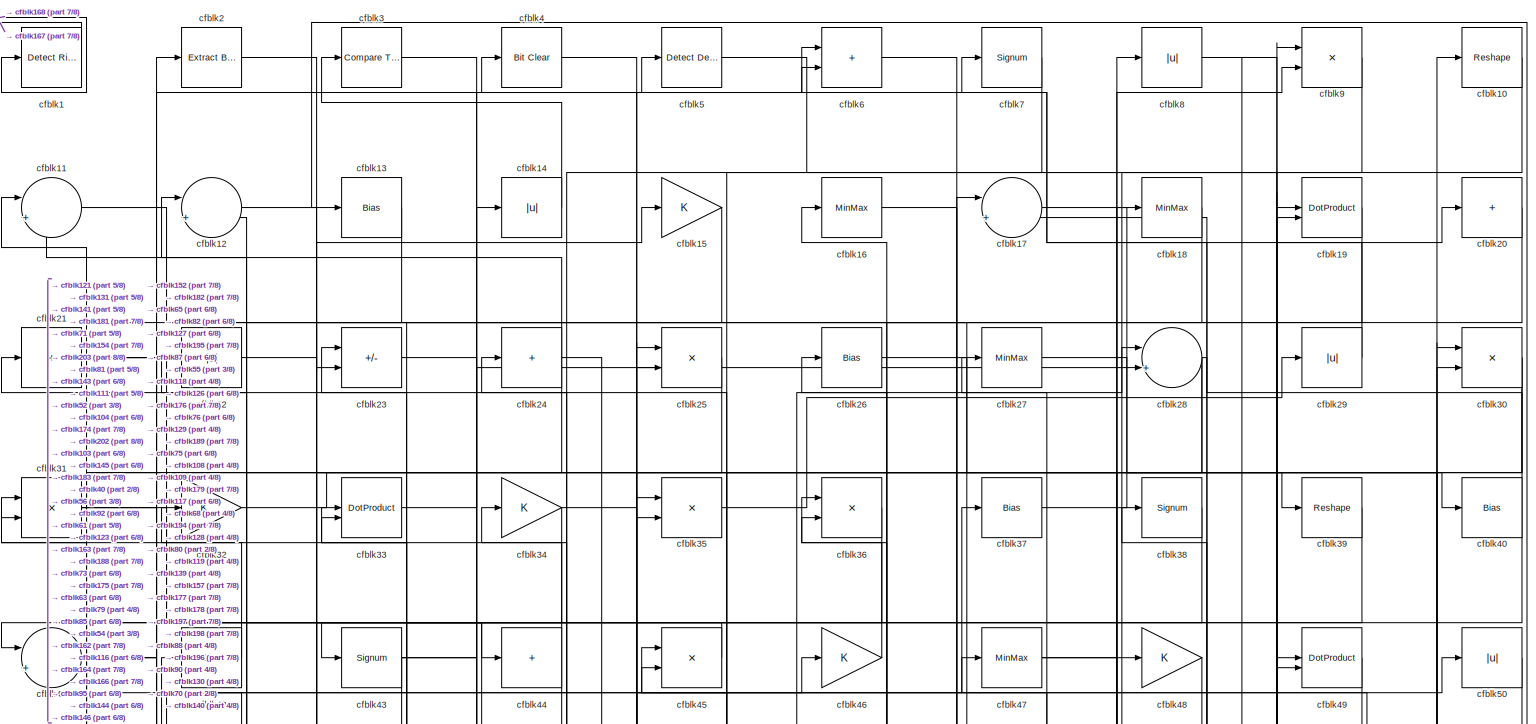
[diagram: root canvas - part 1/8, full width, top band]
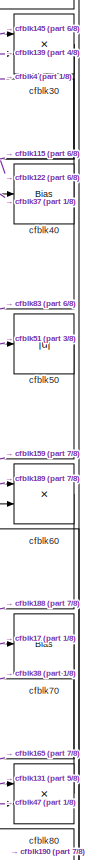
[diagram: root canvas - part 2/8, top right region]
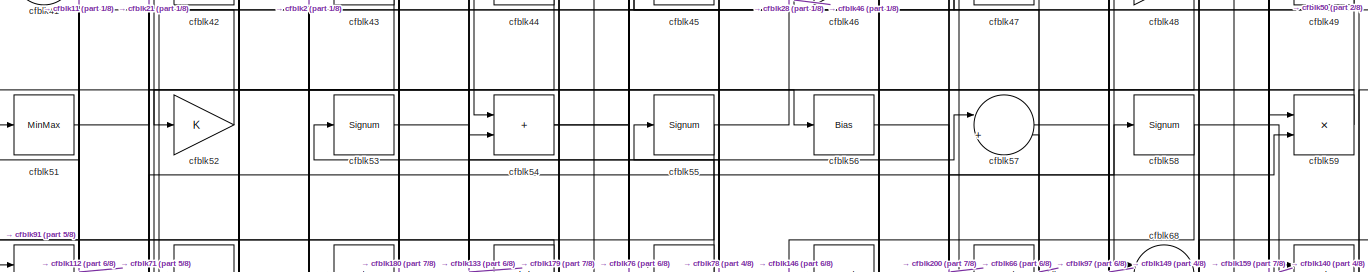
[diagram: root canvas - part 3/8, full width, top band]
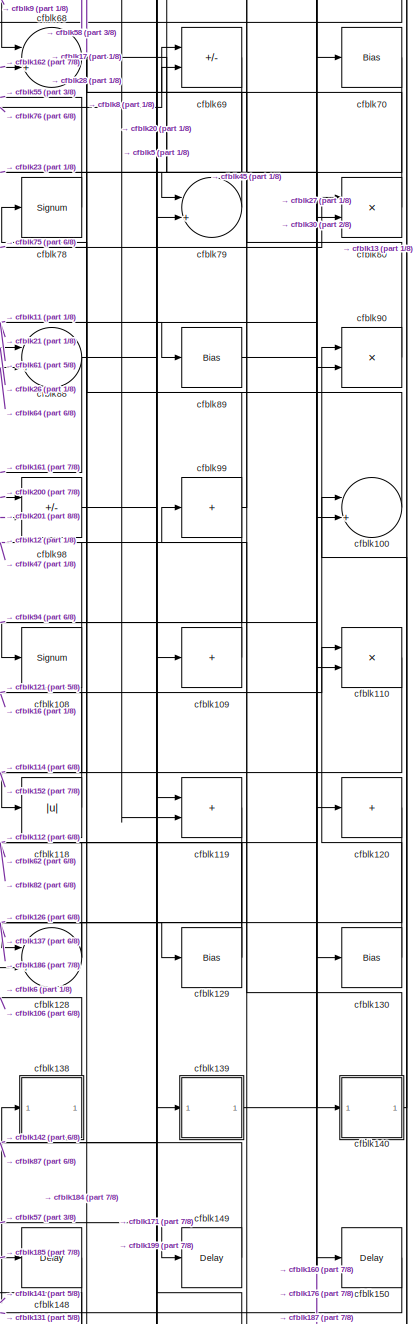
[diagram: root canvas - part 4/8, middle right region]
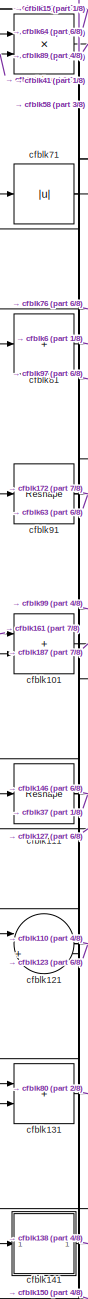
[diagram: root canvas - part 5/8, middle left region]
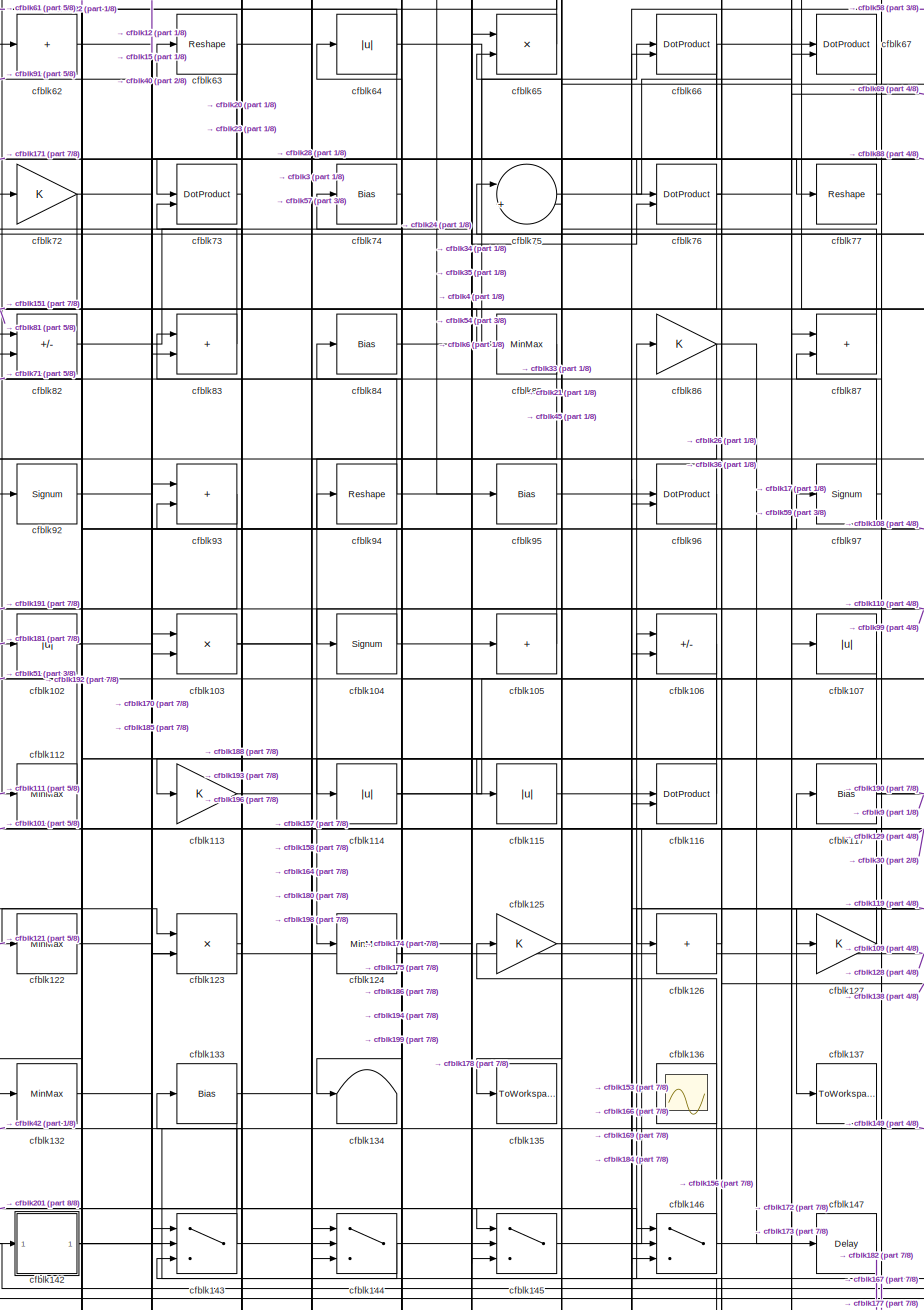
[diagram: root canvas - part 6/8, central region]
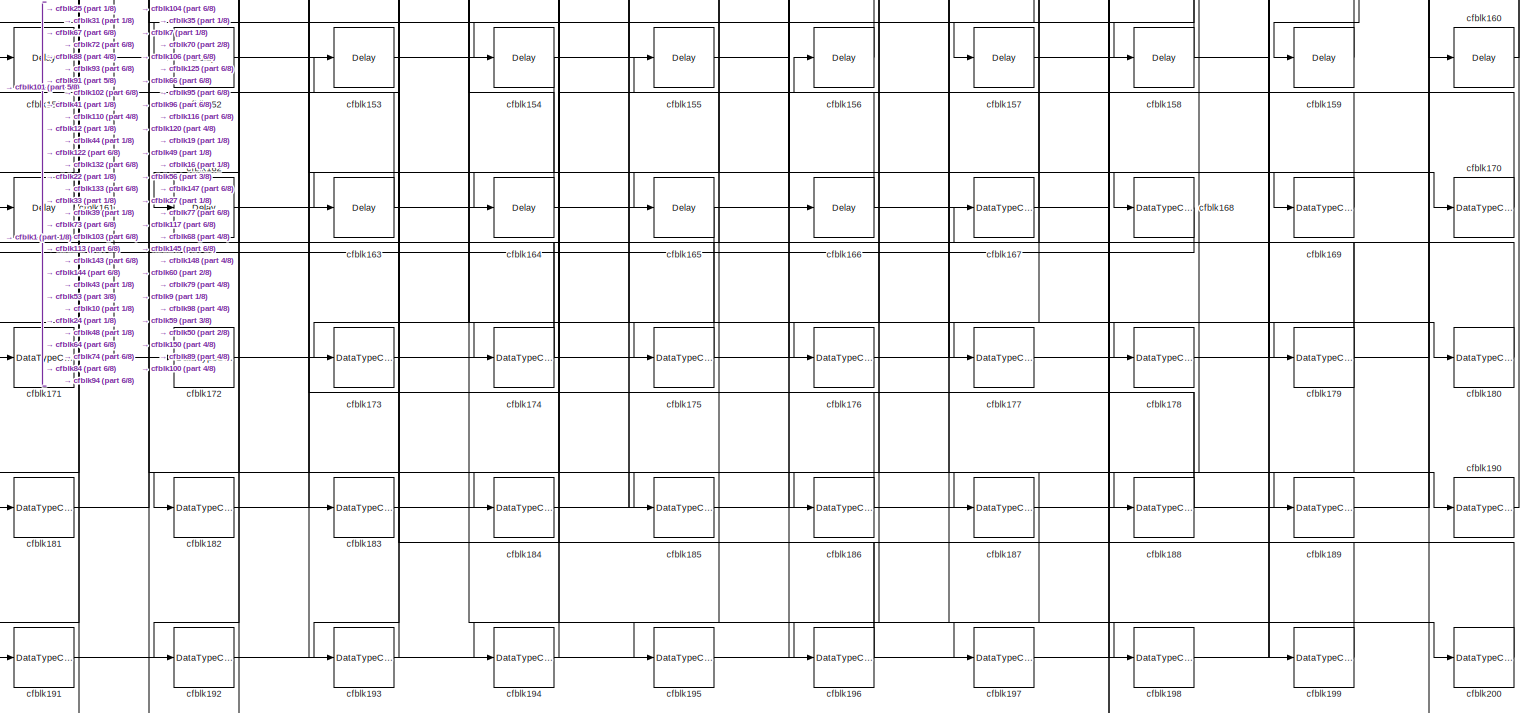
[diagram: root canvas - part 7/8, full width, bottom band]
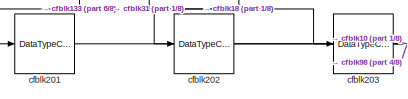
[diagram: root canvas - part 8/8, bottom left region]
MODEL slx_1db475bb5ed8
KIND model
CONFIG AbsTol = auto
CONFIG EnableMultiTasking = off
CONFIG FixedStep = auto
CONFIG MaxStep = auto
CONFIG MinStep = auto
CONFIG RelTol = 1e-3
CONFIG SampleTimeConstraint = Unconstrained
CONFIG SolverName = VariableStepAuto
CONFIG StartTime = 0.0
CONFIG StopTime = 10.0
BLOCK [Reference] cfblk1  REF=hdlsllib/Logic and Bit
Operations/Detect Rise
Positive
  SourceBlock = hdlsllib/Logic and Bit\nOperations/Detect Rise\nPositive
  SourceType = Detect Rise Positive
BLOCK [Reshape] cfblk10
BLOCK [Sum] cfblk100
  Inputs = |++
BLOCK [Sum] cfblk101
  IconShape = rectangular
BLOCK [Abs] cfblk102
  SaturateOnIntegerOverflow = off
BLOCK [Product] cfblk103
  Inputs = */
  RndMeth = Zero
  SaturateOnIntegerOverflow = on
BLOCK [Signum] cfblk104
BLOCK [Sum] cfblk105
  IconShape = rectangular
  Inputs = +
BLOCK [Sum] cfblk106
  IconShape = rectangular
  Inputs = +-
BLOCK [Abs] cfblk107
  SaturateOnIntegerOverflow = off
BLOCK [Signum] cfblk108
BLOCK [Sum] cfblk109
  IconShape = rectangular
  Inputs = +
BLOCK [Sum] cfblk11
  Inputs = |++
BLOCK [Product] cfblk110
  Inputs = */
  RndMeth = Zero
  SaturateOnIntegerOverflow = on
BLOCK [Reshape] cfblk111
BLOCK [MinMax] cfblk112
BLOCK [Gain] cfblk113
BLOCK [Abs] cfblk114
  SaturateOnIntegerOverflow = off
BLOCK [Abs] cfblk115
  SaturateOnIntegerOverflow = off
BLOCK [DotProduct] cfblk116
  OutDataTypeStr = Inherit: Inherit via internal rule
BLOCK [Bias] cfblk117
  Bias = 0.0
  SaturateOnIntegerOverflow = off
BLOCK [Abs] cfblk118
  SaturateOnIntegerOverflow = off
BLOCK [Sum] cfblk119
  IconShape = rectangular
BLOCK [Sum] cfblk12
  Inputs = |++
BLOCK [Sum] cfblk120
  IconShape = rectangular
  Inputs = +
BLOCK [Sum] cfblk121
  Inputs = |++
BLOCK [MinMax] cfblk122
BLOCK [Product] cfblk123
  Inputs = */
  RndMeth = Zero
  SaturateOnIntegerOverflow = on
BLOCK [MinMax] cfblk124
BLOCK [Gain] cfblk125
BLOCK [Sum] cfblk126
  IconShape = rectangular
  Inputs = +
BLOCK [Gain] cfblk127
BLOCK [Sum] cfblk128
  Inputs = |++
BLOCK [Bias] cfblk129
  Bias = 0.0
  SaturateOnIntegerOverflow = off
BLOCK [Bias] cfblk13
  Bias = 0.0
  SaturateOnIntegerOverflow = off
BLOCK [Bias] cfblk130
  Bias = 0.0
  SaturateOnIntegerOverflow = off
BLOCK [Sum] cfblk131
  IconShape = rectangular
BLOCK [MinMax] cfblk132
BLOCK [Bias] cfblk133
  Bias = 0.0
  SaturateOnIntegerOverflow = off
BLOCK [Terminator] cfblk134
BLOCK [ToWorkspace] cfblk135
  MaxDataPoints = inf
  SampleTime = -1
  SaveFormat = Timeseries
  VariableName = simout
BLOCK [Scope] cfblk136
  Floating = on
  NumInputPorts = 1
  ScopeSpecificationString = Simulink.scopes.TimeScopeBlockCfg('CurrentConfiguration', extmgr.ConfigurationSet(extmgr.Configuration('Core','General UI',true,'FigureColor',[0.156862745098039 0.156862745098039 0.156862745098039]),extmgr.Configuration('Core','Source UI',true),extmgr.Configuration('Sources','WiredSimulink',true,'DataLoggingVariableName','ScopeData1','DataLoggingSaveFormat','StructureWithTime','DataLoggingLimitDat...<+2713ch>
BLOCK [ToWorkspace] cfblk137
  MaxDataPoints = inf
  SampleTime = -1
  SaveFormat = Timeseries
  VariableName = simout
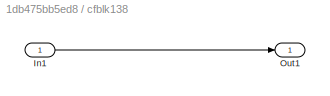
BLOCK [SubSystem] cfblk138
  LibrarySourceBlock = hdlsllib/Ports &\nSubsystems/Subsystem
BLOCK [Inport] cfblk138/In1
BLOCK [Outport] cfblk138/Out1
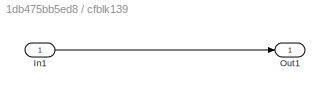
BLOCK [SubSystem] cfblk139
  LibrarySourceBlock = hdlsllib/Ports &\nSubsystems/Subsystem
BLOCK [Inport] cfblk139/In1
BLOCK [Outport] cfblk139/Out1
BLOCK [Abs] cfblk14
  SaturateOnIntegerOverflow = off
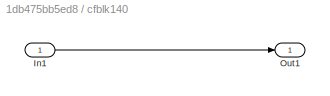
BLOCK [SubSystem] cfblk140
  LibrarySourceBlock = hdlsllib/Ports &\nSubsystems/Subsystem
BLOCK [Inport] cfblk140/In1
BLOCK [Outport] cfblk140/Out1
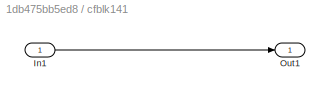
BLOCK [SubSystem] cfblk141
  LibrarySourceBlock = hdlsllib/Ports &\nSubsystems/Subsystem
BLOCK [Inport] cfblk141/In1
BLOCK [Outport] cfblk141/Out1
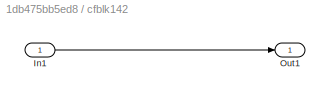
BLOCK [SubSystem] cfblk142
  LibrarySourceBlock = hdlsllib/Ports &\nSubsystems/Subsystem
BLOCK [Inport] cfblk142/In1
BLOCK [Outport] cfblk142/Out1
BLOCK [Switch] cfblk143
  InputSameDT = off
  SaturateOnIntegerOverflow = off
BLOCK [Switch] cfblk144
  InputSameDT = off
  SaturateOnIntegerOverflow = off
BLOCK [Switch] cfblk145
  InputSameDT = off
  SaturateOnIntegerOverflow = off
BLOCK [Switch] cfblk146
  InputSameDT = off
  SaturateOnIntegerOverflow = off
BLOCK [Delay] cfblk147
  InputPortMap = u0
  SampleTime = 1
BLOCK [Delay] cfblk148
  InputPortMap = u0
  SampleTime = 1
BLOCK [Delay] cfblk149
  InputPortMap = u0
  SampleTime = 1
BLOCK [Gain] cfblk15
BLOCK [Delay] cfblk150
  InputPortMap = u0
  SampleTime = 1
BLOCK [Delay] cfblk151
  InputPortMap = u0
  SampleTime = 1
BLOCK [Delay] cfblk152
  InputPortMap = u0
  SampleTime = 1
BLOCK [Delay] cfblk153
  InputPortMap = u0
  SampleTime = 1
BLOCK [Delay] cfblk154
  InputPortMap = u0
  SampleTime = 1
BLOCK [Delay] cfblk155
  InputPortMap = u0
  SampleTime = 1
BLOCK [Delay] cfblk156
  InputPortMap = u0
  SampleTime = 1
BLOCK [Delay] cfblk157
  InputPortMap = u0
  SampleTime = 1
BLOCK [Delay] cfblk158
  InputPortMap = u0
  SampleTime = 1
BLOCK [Delay] cfblk159
  InputPortMap = u0
  SampleTime = 1
BLOCK [MinMax] cfblk16
BLOCK [Delay] cfblk160
  InputPortMap = u0
  SampleTime = 1
BLOCK [Delay] cfblk161
  InputPortMap = u0
  SampleTime = 1
BLOCK [Delay] cfblk162
  InputPortMap = u0
  SampleTime = 1
BLOCK [Delay] cfblk163
  InputPortMap = u0
  SampleTime = 1
BLOCK [Delay] cfblk164
  InputPortMap = u0
  SampleTime = 1
BLOCK [Delay] cfblk165
  InputPortMap = u0
  SampleTime = 1
BLOCK [Delay] cfblk166
  InputPortMap = u0
  SampleTime = 1
BLOCK [DataTypeConversion] cfblk167
  OutDataTypeStr = uint8
  RndMeth = Floor
  SaturateOnIntegerOverflow = off
BLOCK [DataTypeConversion] cfblk168
  OutDataTypeStr = uint8
  RndMeth = Floor
  SaturateOnIntegerOverflow = off
BLOCK [DataTypeConversion] cfblk169
  OutDataTypeStr = uint8
  RndMeth = Floor
  SaturateOnIntegerOverflow = off
BLOCK [Sum] cfblk17
  Inputs = |++
BLOCK [DataTypeConversion] cfblk170
  OutDataTypeStr = uint8
  RndMeth = Floor
  SaturateOnIntegerOverflow = off
BLOCK [DataTypeConversion] cfblk171
  RndMeth = Floor
  SaturateOnIntegerOverflow = off
BLOCK [DataTypeConversion] cfblk172
  OutDataTypeStr = uint8
  RndMeth = Floor
  SaturateOnIntegerOverflow = off
BLOCK [DataTypeConversion] cfblk173
  OutDataTypeStr = uint8
  RndMeth = Floor
  SaturateOnIntegerOverflow = off
BLOCK [DataTypeConversion] cfblk174
  RndMeth = Floor
  SaturateOnIntegerOverflow = off
BLOCK [DataTypeConversion] cfblk175
  OutDataTypeStr = uint8
  RndMeth = Floor
  SaturateOnIntegerOverflow = off
BLOCK [DataTypeConversion] cfblk176
  OutDataTypeStr = uint8
  RndMeth = Floor
  SaturateOnIntegerOverflow = off
BLOCK [DataTypeConversion] cfblk177
  OutDataTypeStr = uint8
  RndMeth = Floor
  SaturateOnIntegerOverflow = off
BLOCK [DataTypeConversion] cfblk178
  OutDataTypeStr = uint8
  RndMeth = Floor
  SaturateOnIntegerOverflow = off
BLOCK [DataTypeConversion] cfblk179
  RndMeth = Floor
  SaturateOnIntegerOverflow = off
BLOCK [MinMax] cfblk18
BLOCK [DataTypeConversion] cfblk180
  OutDataTypeStr = uint8
  RndMeth = Floor
  SaturateOnIntegerOverflow = off
BLOCK [DataTypeConversion] cfblk181
  OutDataTypeStr = uint8
  RndMeth = Floor
  SaturateOnIntegerOverflow = off
BLOCK [DataTypeConversion] cfblk182
  OutDataTypeStr = uint8
  RndMeth = Floor
  SaturateOnIntegerOverflow = off
BLOCK [DataTypeConversion] cfblk183
  OutDataTypeStr = uint8
  RndMeth = Floor
  SaturateOnIntegerOverflow = off
BLOCK [DataTypeConversion] cfblk184
  OutDataTypeStr = uint8
  RndMeth = Floor
  SaturateOnIntegerOverflow = off
BLOCK [DataTypeConversion] cfblk185
  OutDataTypeStr = uint8
  RndMeth = Floor
  SaturateOnIntegerOverflow = off
BLOCK [DataTypeConversion] cfblk186
  OutDataTypeStr = uint8
  RndMeth = Floor
  SaturateOnIntegerOverflow = off
BLOCK [DataTypeConversion] cfblk187
  OutDataTypeStr = uint8
  RndMeth = Floor
  SaturateOnIntegerOverflow = off
BLOCK [DataTypeConversion] cfblk188
  RndMeth = Floor
  SaturateOnIntegerOverflow = off
BLOCK [DataTypeConversion] cfblk189
  OutDataTypeStr = uint8
  RndMeth = Floor
  SaturateOnIntegerOverflow = off
BLOCK [DotProduct] cfblk19
  OutDataTypeStr = Inherit: Inherit via internal rule
BLOCK [DataTypeConversion] cfblk190
  OutDataTypeStr = uint8
  RndMeth = Floor
  SaturateOnIntegerOverflow = off
BLOCK [DataTypeConversion] cfblk191
  OutDataTypeStr = uint8
  RndMeth = Floor
  SaturateOnIntegerOverflow = off
BLOCK [DataTypeConversion] cfblk192
  OutDataTypeStr = uint8
  RndMeth = Floor
  SaturateOnIntegerOverflow = off
BLOCK [DataTypeConversion] cfblk193
  OutDataTypeStr = uint8
  RndMeth = Floor
  SaturateOnIntegerOverflow = off
BLOCK [DataTypeConversion] cfblk194
  OutDataTypeStr = uint8
  RndMeth = Floor
  SaturateOnIntegerOverflow = off
BLOCK [DataTypeConversion] cfblk195
  OutDataTypeStr = uint8
  RndMeth = Floor
  SaturateOnIntegerOverflow = off
BLOCK [DataTypeConversion] cfblk196
  RndMeth = Floor
  SaturateOnIntegerOverflow = off
BLOCK [DataTypeConversion] cfblk197
  OutDataTypeStr = uint8
  RndMeth = Floor
  SaturateOnIntegerOverflow = off
BLOCK [DataTypeConversion] cfblk198
  OutDataTypeStr = uint8
  RndMeth = Floor
  SaturateOnIntegerOverflow = off
BLOCK [DataTypeConversion] cfblk199
  OutDataTypeStr = uint8
  RndMeth = Floor
  SaturateOnIntegerOverflow = off
BLOCK [Reference] cfblk2  REF=simulink/Logic and Bit
Operations/Extract Bits
  LibrarySourceBlock = hdlsllib/Logic and Bit\nOperations/Extract Bits
  SourceBlock = simulink/Logic and Bit\nOperations/Extract Bits
  SourceType = Extract Bits
BLOCK [Sum] cfblk20
  IconShape = rectangular
  Inputs = +
BLOCK [DataTypeConversion] cfblk200
  OutDataTypeStr = uint8
  RndMeth = Floor
  SaturateOnIntegerOverflow = off
BLOCK [DataTypeConversion] cfblk201
  OutDataTypeStr = uint8
  RndMeth = Floor
  SaturateOnIntegerOverflow = off
BLOCK [DataTypeConversion] cfblk202
  OutDataTypeStr = uint8
  RndMeth = Floor
  SaturateOnIntegerOverflow = off
BLOCK [DataTypeConversion] cfblk203
  OutDataTypeStr = uint8
  RndMeth = Floor
  SaturateOnIntegerOverflow = off
BLOCK [Sum] cfblk21
  IconShape = rectangular
  Inputs = +
BLOCK [Abs] cfblk22
  SaturateOnIntegerOverflow = off
BLOCK [Sum] cfblk23
  IconShape = rectangular
  Inputs = +-
BLOCK [Sum] cfblk24
  IconShape = rectangular
  Inputs = +
BLOCK [Product] cfblk25
  Inputs = */
  RndMeth = Zero
  SaturateOnIntegerOverflow = on
BLOCK [Bias] cfblk26
  Bias = 0.0
  SaturateOnIntegerOverflow = off
BLOCK [MinMax] cfblk27
BLOCK [Sum] cfblk28
  Inputs = |++
BLOCK [Abs] cfblk29
  SaturateOnIntegerOverflow = off
BLOCK [Reference] cfblk3  REF=hdlsllib/Logic and Bit
Operations/Compare
To Zero
  SourceBlock = hdlsllib/Logic and Bit\nOperations/Compare\nTo Zero
  SourceType = Compare To Zero
BLOCK [Product] cfblk30
  Inputs = */
  RndMeth = Zero
  SaturateOnIntegerOverflow = on
BLOCK [Product] cfblk31
  Inputs = */
  RndMeth = Zero
  SaturateOnIntegerOverflow = on
BLOCK [Gain] cfblk32
BLOCK [DotProduct] cfblk33
  OutDataTypeStr = Inherit: Inherit via internal rule
BLOCK [Gain] cfblk34
BLOCK [Product] cfblk35
  Inputs = */
  RndMeth = Zero
  SaturateOnIntegerOverflow = on
BLOCK [Product] cfblk36
  Inputs = */
  RndMeth = Zero
  SaturateOnIntegerOverflow = on
BLOCK [Bias] cfblk37
  Bias = 0.0
  SaturateOnIntegerOverflow = off
BLOCK [Signum] cfblk38
BLOCK [Reshape] cfblk39
BLOCK [Reference] cfblk4  REF=simulink/Logic and Bit
Operations/Bit Clear
  LibrarySourceBlock = hdlsllib/Logic and Bit\nOperations/Bit Clear
  SourceBlock = simulink/Logic and Bit\nOperations/Bit Clear
  SourceType = Bit Clear
BLOCK [Bias] cfblk40
  Bias = 0.0
  SaturateOnIntegerOverflow = off
BLOCK [Sum] cfblk41
  Inputs = |++
BLOCK [Bias] cfblk42
  Bias = 0.0
  SaturateOnIntegerOverflow = off
BLOCK [Signum] cfblk43
BLOCK [Sum] cfblk44
  IconShape = rectangular
  Inputs = +
BLOCK [Product] cfblk45
  Inputs = */
  RndMeth = Zero
  SaturateOnIntegerOverflow = on
BLOCK [Gain] cfblk46
BLOCK [MinMax] cfblk47
BLOCK [Gain] cfblk48
BLOCK [DotProduct] cfblk49
  OutDataTypeStr = Inherit: Inherit via internal rule
BLOCK [Reference] cfblk5  REF=simulink/Logic and Bit
Operations/Detect
Decrease
  LibrarySourceBlock = hdlsllib/Logic and Bit\nOperations/Detect\nDecrease
  SourceBlock = simulink/Logic and Bit\nOperations/Detect\nDecrease
  SourceType = Detect Decrease
BLOCK [Abs] cfblk50
  SaturateOnIntegerOverflow = off
BLOCK [MinMax] cfblk51
BLOCK [Gain] cfblk52
BLOCK [Signum] cfblk53
BLOCK [Sum] cfblk54
  IconShape = rectangular
BLOCK [Signum] cfblk55
BLOCK [Bias] cfblk56
  Bias = 0.0
  SaturateOnIntegerOverflow = off
BLOCK [Sum] cfblk57
  Inputs = |++
BLOCK [Signum] cfblk58
BLOCK [Product] cfblk59
  Inputs = */
  RndMeth = Zero
  SaturateOnIntegerOverflow = on
BLOCK [Sum] cfblk6
  IconShape = rectangular
BLOCK [Product] cfblk60
  Inputs = */
  RndMeth = Zero
  SaturateOnIntegerOverflow = on
BLOCK [Product] cfblk61
  Inputs = */
  RndMeth = Zero
  SaturateOnIntegerOverflow = on
BLOCK [Sum] cfblk62
  IconShape = rectangular
  Inputs = +
BLOCK [Reshape] cfblk63
BLOCK [Abs] cfblk64
  SaturateOnIntegerOverflow = off
BLOCK [Product] cfblk65
  Inputs = */
  RndMeth = Zero
  SaturateOnIntegerOverflow = on
BLOCK [DotProduct] cfblk66
  OutDataTypeStr = Inherit: Inherit via internal rule
BLOCK [DotProduct] cfblk67
  OutDataTypeStr = Inherit: Inherit via internal rule
BLOCK [Sum] cfblk68
  Inputs = |++
BLOCK [Sum] cfblk69
  IconShape = rectangular
  Inputs = +-
BLOCK [Signum] cfblk7
BLOCK [Bias] cfblk70
  Bias = 0.0
  SaturateOnIntegerOverflow = off
BLOCK [Abs] cfblk71
  SaturateOnIntegerOverflow = off
BLOCK [Gain] cfblk72
BLOCK [DotProduct] cfblk73
  OutDataTypeStr = Inherit: Inherit via internal rule
BLOCK [Bias] cfblk74
  Bias = 0.0
  SaturateOnIntegerOverflow = off
BLOCK [Sum] cfblk75
  Inputs = |++
BLOCK [DotProduct] cfblk76
  OutDataTypeStr = Inherit: Inherit via internal rule
BLOCK [Reshape] cfblk77
BLOCK [Signum] cfblk78
BLOCK [Sum] cfblk79
  Inputs = |++
BLOCK [Abs] cfblk8
  SaturateOnIntegerOverflow = off
BLOCK [Product] cfblk80
  Inputs = */
  RndMeth = Zero
  SaturateOnIntegerOverflow = on
BLOCK [Sum] cfblk81
  IconShape = rectangular
  Inputs = +
BLOCK [Sum] cfblk82
  IconShape = rectangular
  Inputs = +-
BLOCK [Sum] cfblk83
  IconShape = rectangular
BLOCK [Bias] cfblk84
  Bias = 0.0
  SaturateOnIntegerOverflow = off
BLOCK [MinMax] cfblk85
BLOCK [Gain] cfblk86
BLOCK [Sum] cfblk87
  IconShape = rectangular
BLOCK [Sum] cfblk88
  Inputs = |++
BLOCK [Bias] cfblk89
  Bias = 0.0
  SaturateOnIntegerOverflow = off
BLOCK [Product] cfblk9
  Inputs = */
  RndMeth = Zero
  SaturateOnIntegerOverflow = on
BLOCK [Product] cfblk90
  Inputs = */
  RndMeth = Zero
  SaturateOnIntegerOverflow = on
BLOCK [Reshape] cfblk91
BLOCK [Signum] cfblk92
BLOCK [Sum] cfblk93
  IconShape = rectangular
BLOCK [Reshape] cfblk94
BLOCK [Bias] cfblk95
  Bias = 0.0
  SaturateOnIntegerOverflow = off
BLOCK [DotProduct] cfblk96
  OutDataTypeStr = Inherit: Inherit via internal rule
BLOCK [Signum] cfblk97
BLOCK [Sum] cfblk98
  IconShape = rectangular
  Inputs = +-
BLOCK [Sum] cfblk99
  IconShape = rectangular
  Inputs = +
LINE cfblk100:1 -> cfblk78:1
LINE cfblk101:1 -> cfblk187:1
NET cfblk102:1 -> cfblk142:1, cfblk144:3
NET cfblk103:1 -> cfblk157:1, cfblk158:1
NET cfblk104:1 -> cfblk178:1, cfblk22:1
LINE cfblk105:1 -> cfblk82:1
LINE cfblk106:1 -> cfblk192:1
LINE cfblk107:1 -> cfblk134:1
NET cfblk108:1 -> cfblk114:1, cfblk12:2
LINE cfblk109:1 -> cfblk47:1
LINE cfblk10:1 -> cfblk164:1
LINE cfblk110:1 -> cfblk152:1
NET cfblk111:1 -> cfblk146:3, cfblk37:1
LINE cfblk112:1 -> cfblk51:1
LINE cfblk113:1 -> cfblk180:1
NET cfblk114:1 -> cfblk76:2, cfblk87:1
LINE cfblk115:1 -> cfblk127:1
LINE cfblk116:1 -> cfblk34:1
NET cfblk117:1 -> cfblk190:1, cfblk9:2
LINE cfblk118:1 -> cfblk16:1
LINE cfblk119:1 -> cfblk137:1
LINE cfblk11:1 -> cfblk108:1
LINE cfblk120:1 -> cfblk186:1
NET cfblk121:1 -> cfblk110:1, cfblk123:1
LINE cfblk122:1 -> cfblk170:1
LINE cfblk123:1 -> cfblk23:1
LINE cfblk124:1 -> cfblk105:1
LINE cfblk125:1 -> cfblk169:1
LINE cfblk126:1 -> cfblk26:1
NET cfblk127:1 -> cfblk101:2, cfblk45:2
NET cfblk128:1 -> cfblk126:1, cfblk82:2
NET cfblk129:1 -> cfblk112:1, cfblk62:1
LINE cfblk12:1 -> cfblk145:1
LINE cfblk130:1 -> cfblk90:1
LINE cfblk131:1 -> cfblk80:1
LINE cfblk132:1 -> cfblk185:1
NET cfblk133:1 -> cfblk201:1, cfblk57:1
LINE cfblk138/In1:1 -> cfblk138/Out1:1
LINE cfblk138:1 -> cfblk106:1
LINE cfblk139/In1:1 -> cfblk139/Out1:1
LINE cfblk139:1 -> cfblk30:2
LINE cfblk13:1 -> cfblk23:2
LINE cfblk140/In1:1 -> cfblk140/Out1:1
NET cfblk140:1 -> cfblk13:1, cfblk99:1
LINE cfblk141/In1:1 -> cfblk141/Out1:1
LINE cfblk141:1 -> cfblk138:1
LINE cfblk142/In1:1 -> cfblk142/Out1:1
NET cfblk142:1 -> cfblk109:1, cfblk128:2, cfblk86:1, cfblk97:1
NET cfblk143:1 -> cfblk198:1, cfblk42:1
NET cfblk144:1 -> cfblk143:3, cfblk35:1
LINE cfblk145:1 -> cfblk30:1
NET cfblk146:1 -> cfblk107:1, cfblk65:2
LINE cfblk147:1 -> cfblk182:1
LINE cfblk148:1 -> cfblk184:1
LINE cfblk149:1 -> cfblk87:2
LINE cfblk14:1 -> cfblk3:1
LINE cfblk150:1 -> cfblk131:2
LINE cfblk151:1 -> cfblk106:2
LINE cfblk152:1 -> cfblk35:2
LINE cfblk153:1 -> cfblk66:2
LINE cfblk154:1 -> cfblk173:1
LINE cfblk155:1 -> cfblk168:1
LINE cfblk156:1 -> cfblk116:1
LINE cfblk157:1 -> cfblk9:1
LINE cfblk158:1 -> cfblk145:2
LINE cfblk159:1 -> cfblk59:1
LINE cfblk15:1 -> cfblk141:1
LINE cfblk160:1 -> cfblk100:1
LINE cfblk161:1 -> cfblk101:1
LINE cfblk162:1 -> cfblk68:2
LINE cfblk163:1 -> cfblk31:2
LINE cfblk164:1 -> cfblk144:1
LINE cfblk165:1 -> cfblk193:1
LINE cfblk166:1 -> cfblk24:1
LINE cfblk167:1 -> cfblk117:1
LINE cfblk168:1 -> cfblk1:1
LINE cfblk169:1 -> cfblk156:1
LINE cfblk16:1 -> cfblk189:1
LINE cfblk170:1 -> cfblk125:1
NET cfblk171:1 -> cfblk116:2, cfblk79:2
LINE cfblk172:1 -> cfblk67:1
LINE cfblk173:1 -> cfblk67:2
NET cfblk174:1 -> cfblk12:1, cfblk73:2
LINE cfblk175:1 -> cfblk74:1
LINE cfblk176:1 -> cfblk150:1
LINE cfblk177:1 -> cfblk19:1
LINE cfblk178:1 -> cfblk19:2
NET cfblk179:1 -> cfblk155:1, cfblk197:1, cfblk27:1
LINE cfblk17:1 -> cfblk70:1
LINE cfblk180:1 -> cfblk53:1
LINE cfblk181:1 -> cfblk102:1
LINE cfblk182:1 -> cfblk25:1
LINE cfblk183:1 -> cfblk25:2
LINE cfblk184:1 -> cfblk96:2
LINE cfblk185:1 -> cfblk148:1
LINE cfblk186:1 -> cfblk64:1
LINE cfblk187:1 -> cfblk120:1
NET cfblk188:1 -> cfblk143:1, cfblk33:2
LINE cfblk189:1 -> cfblk60:1
LINE cfblk18:1 -> cfblk202:1
LINE cfblk190:1 -> cfblk60:2
LINE cfblk191:1 -> cfblk96:1
LINE cfblk192:1 -> cfblk93:1
LINE cfblk193:1 -> cfblk93:2
LINE cfblk194:1 -> cfblk84:1
LINE cfblk195:1 -> cfblk48:1
NET cfblk196:1 -> cfblk133:1, cfblk153:1
LINE cfblk197:1 -> cfblk49:1
LINE cfblk198:1 -> cfblk49:2
LINE cfblk199:1 -> cfblk94:1
LINE cfblk19:1 -> cfblk176:1
LINE cfblk1:1 -> cfblk167:1
LINE cfblk200:1 -> cfblk98:1
LINE cfblk201:1 -> cfblk98:2
LINE cfblk202:1 -> cfblk10:1
LINE cfblk203:1 -> cfblk18:1
LINE cfblk20:1 -> cfblk73:1
NET cfblk21:1 -> cfblk54:1, cfblk54:2, cfblk90:2
LINE cfblk22:1 -> cfblk183:1
LINE cfblk23:1 -> cfblk79:1
NET cfblk24:1 -> cfblk11:2, cfblk121:1, cfblk95:1
LINE cfblk25:1 -> cfblk181:1
LINE cfblk26:1 -> cfblk88:1
LINE cfblk27:1 -> cfblk130:1
NET cfblk28:1 -> cfblk103:2, cfblk128:1, cfblk145:3
LINE cfblk29:1 -> cfblk7:1
LINE cfblk2:1 -> cfblk56:1
NET cfblk30:1 -> cfblk115:1, cfblk122:1
NET cfblk31:1 -> cfblk203:1, cfblk44:1
LINE cfblk32:1 -> cfblk39:1
LINE cfblk33:1 -> cfblk14:1
NET cfblk34:1 -> cfblk146:1, cfblk92:1
LINE cfblk35:1 -> cfblk29:1
LINE cfblk36:1 -> cfblk131:1
LINE cfblk37:1 -> cfblk40:1
LINE cfblk38:1 -> cfblk43:1
LINE cfblk39:1 -> cfblk163:1
LINE cfblk3:1 -> cfblk85:1
NET cfblk40:1 -> cfblk4:1, cfblk83:2
NET cfblk41:1 -> cfblk154:1, cfblk2:1
LINE cfblk42:1 -> cfblk31:1
NET cfblk43:1 -> cfblk175:1, cfblk5:1, cfblk61:2
NET cfblk44:1 -> cfblk162:1, cfblk32:1
LINE cfblk45:1 -> cfblk41:1
LINE cfblk46:1 -> cfblk36:1
NET cfblk47:1 -> cfblk80:2, cfblk8:1
LINE cfblk48:1 -> cfblk194:1
LINE cfblk49:1 -> cfblk196:1
LINE cfblk4:1 -> cfblk65:1
LINE cfblk50:1 -> cfblk159:1
LINE cfblk51:1 -> cfblk50:1
LINE cfblk52:1 -> cfblk11:1
LINE cfblk53:1 -> cfblk179:1
NET cfblk54:1 -> cfblk46:1, cfblk76:1
NET cfblk55:1 -> cfblk28:1, cfblk91:1
LINE cfblk56:1 -> cfblk200:1
LINE cfblk57:1 -> cfblk149:1
NET cfblk58:1 -> cfblk140:1, cfblk146:2
LINE cfblk59:1 -> cfblk52:1
LINE cfblk5:1 -> cfblk119:1
LINE cfblk60:1 -> cfblk188:1
LINE cfblk61:1 -> cfblk89:1
LINE cfblk62:1 -> cfblk103:1
NET cfblk63:1 -> cfblk123:2, cfblk143:2, cfblk28:2
NET cfblk64:1 -> cfblk111:1, cfblk61:1, cfblk88:2
LINE cfblk65:1 -> cfblk33:1
NET cfblk66:1 -> cfblk132:1, cfblk135:1, cfblk59:2, cfblk75:2
LINE cfblk67:1 -> cfblk171:1
LINE cfblk68:1 -> cfblk100:2
LINE cfblk69:1 -> cfblk118:1
LINE cfblk6:1 -> cfblk129:1
LINE cfblk70:1 -> cfblk165:1
NET cfblk71:1 -> cfblk41:2, cfblk58:1
NET cfblk72:1 -> cfblk151:1, cfblk77:1
LINE cfblk73:1 -> cfblk113:1
LINE cfblk74:1 -> cfblk174:1
LINE cfblk75:1 -> cfblk17:1
NET cfblk76:1 -> cfblk36:2, cfblk69:2, cfblk81:1
LINE cfblk77:1 -> cfblk177:1
LINE cfblk78:1 -> cfblk55:1
LINE cfblk79:1 -> cfblk17:2
LINE cfblk7:1 -> cfblk195:1
LINE cfblk80:1 -> cfblk38:1
LINE cfblk81:1 -> cfblk6:2
LINE cfblk82:1 -> cfblk6:1
LINE cfblk83:1 -> cfblk72:1
LINE cfblk84:1 -> cfblk66:1
LINE cfblk85:1 -> cfblk124:1
NET cfblk86:1 -> cfblk144:2, cfblk147:1
LINE cfblk87:1 -> cfblk21:1
NET cfblk88:1 -> cfblk161:1, cfblk20:1
LINE cfblk89:1 -> cfblk160:1
NET cfblk8:1 -> cfblk119:2, cfblk139:1
LINE cfblk90:1 -> cfblk45:1
NET cfblk91:1 -> cfblk172:1, cfblk63:1
LINE cfblk92:1 -> cfblk15:1
LINE cfblk93:1 -> cfblk191:1
NET cfblk94:1 -> cfblk110:2, cfblk83:1
LINE cfblk95:1 -> cfblk166:1
LINE cfblk96:1 -> cfblk104:1
NET cfblk97:1 -> cfblk57:2, cfblk71:1
LINE cfblk98:1 -> cfblk199:1
NET cfblk99:1 -> cfblk121:2, cfblk69:1, cfblk75:1
LINE cfblk9:1 -> cfblk68:1
note: NET lines group one-source signal fan-out (src -> all destinations, sorted); 1:1 wires keep LINE
